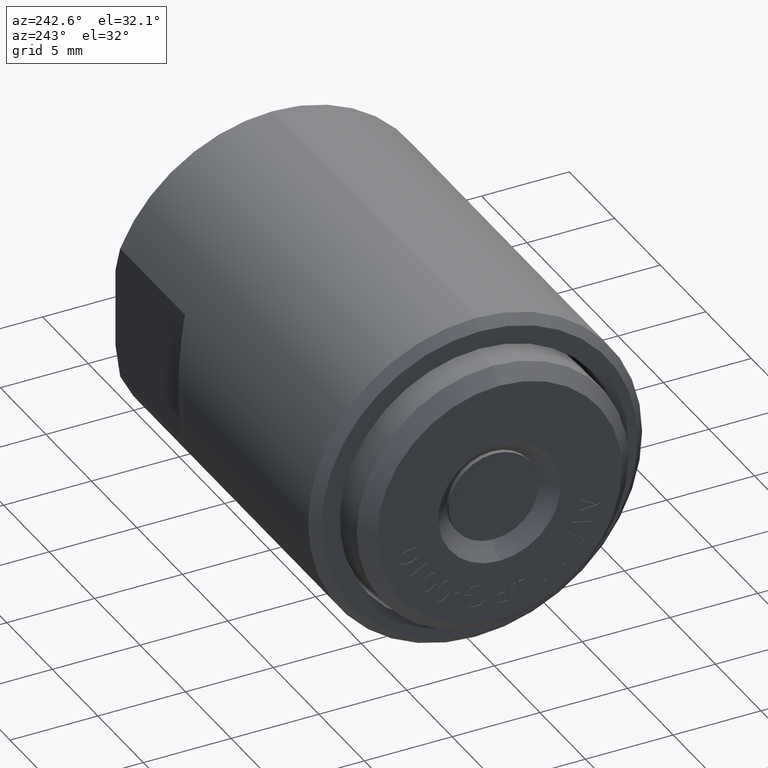
[diagram: clean part render]
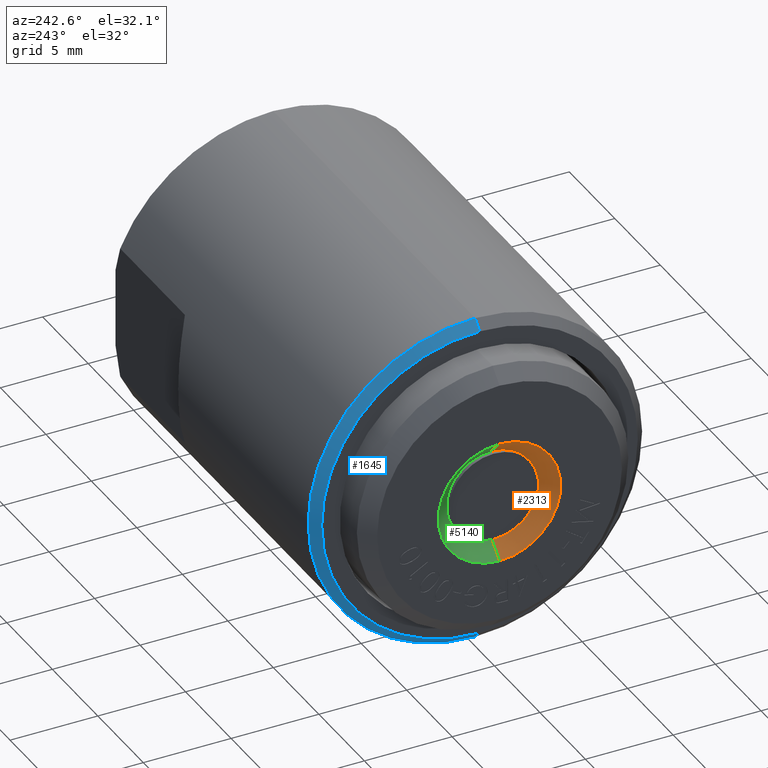
[diagram: same view with three faces highlighted in distinct colors, each labeled with its STEP entity id]
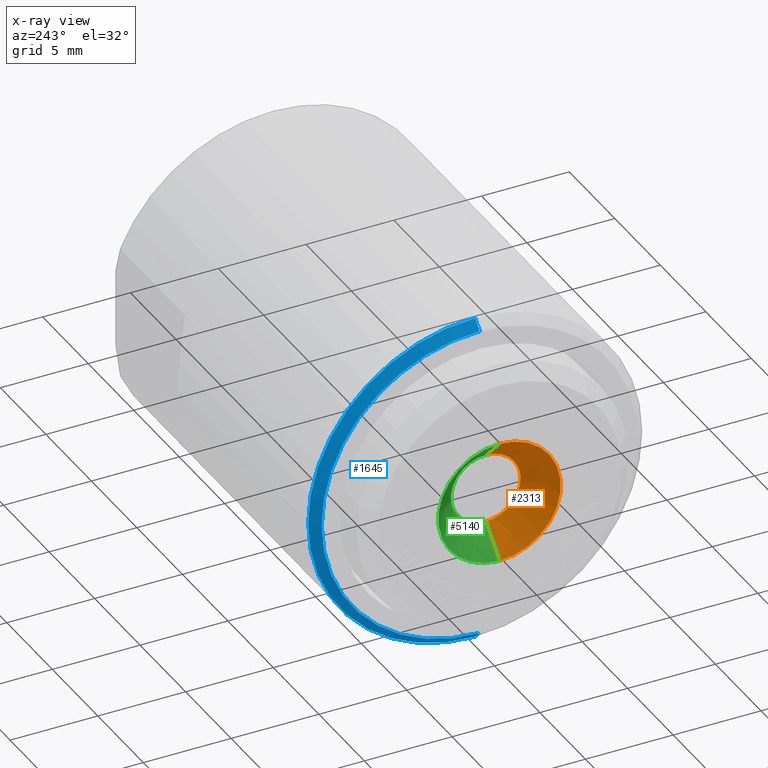
[diagram: x-ray of the same camera — body ghosted, the three highlighted faces saturated]
A machine part, auxiliary view with three faces highlighted in distinct colors.
The next image is the same camera in x-ray (body ghosted, the three faces saturated) — at least one of them is partly hidden behind the body in this view.
Their STEP definitions:

[orange] entity #2313 — the highlighted conical surface has half-angle 45 deg.
#10 = EDGE_CURVE ( 'NONE', #9524, #3121, #3244, .T. ) ;
#35 = CARTESIAN_POINT ( 'NONE',  ( -0.2187499999999999445, 0.0000000000000000000, 0.0000000000000000000 ) ) ;
#276 = CARTESIAN_POINT ( 'NONE',  ( -0.1592500000000001137, 0.0000000000000000000, 0.07799999999999999989 ) ) ;
#1016 = CARTESIAN_POINT ( 'NONE',  ( -0.2187499999999999445, 1.683889348827611553E-17, -0.1375000000000000944 ) ) ;
#1034 = ORIENTED_EDGE ( 'NONE', *, *, #2743, .T. ) ;
#1531 = LINE ( 'NONE', #8016, #9938 ) ;
#2313 = ADVANCED_FACE ( 'NONE', ( #4041 ), #10234, .F. ) ;
#2370 = DIRECTION ( 'NONE',  ( -0.7071067811865459074, 8.659560562354951347E-17, -0.7071067811865490160 ) ) ;
#2743 = EDGE_CURVE ( 'NONE', #3121, #7798, #10802, .T. ) ;
#3121 = VERTEX_POINT ( 'NONE', #1016 ) ;
#3214 = CARTESIAN_POINT ( 'NONE',  ( -0.2187499999999999445, 0.0000000000000000000, 0.0000000000000000000 ) ) ;
#3244 = LINE ( 'NONE', #4879, #4960 ) ;
#3436 = VERTEX_POINT ( 'NONE', #276 ) ;
#3735 = DIRECTION ( 'NONE',  ( -1.000000000000000000, -0.0000000000000000000, -0.0000000000000000000 ) ) ;
#3744 = DIRECTION ( 'NONE',  ( -1.000000000000000000, -0.0000000000000000000, -0.0000000000000000000 ) ) ;
#3980 = DIRECTION ( 'NONE',  ( 0.0000000000000000000, 0.0000000000000000000, 1.000000000000000000 ) ) ;
#4041 = FACE_OUTER_BOUND ( 'NONE', #6935, .T. ) ;
#4214 = CIRCLE ( 'NONE', #10934, 0.07799999999999999989 ) ;
#4553 = CARTESIAN_POINT ( 'NONE',  ( -0.1592500000000001137, 0.0000000000000000000, 0.0000000000000000000 ) ) ;
#4879 = CARTESIAN_POINT ( 'NONE',  ( -0.2187499999999999445, 1.683889348827611553E-17, -0.1375000000000000944 ) ) ;
#4960 = VECTOR ( 'NONE', #2370, 39.37007874015748854 ) ;
#6132 = EDGE_CURVE ( 'NONE', #3436, #7798, #1531, .T. ) ;
#6300 = DIRECTION ( 'NONE',  ( 0.0000000000000000000, 0.0000000000000000000, 1.000000000000000000 ) ) ;
#6853 = DIRECTION ( 'NONE',  ( -0.7071067811865459074, 0.0000000000000000000, 0.7071067811865490160 ) ) ;
#6935 = EDGE_LOOP ( 'NONE', ( #11063, #9178, #1034, #10138 ) ) ;
#7247 = AXIS2_PLACEMENT_3D ( 'NONE', #35, #3735, #6300 ) ;
#7706 = CARTESIAN_POINT ( 'NONE',  ( -0.1592500000000001137, 1.319556926081273548E-17, -0.07799999999999999989 ) ) ;
#7798 = VERTEX_POINT ( 'NONE', #9380 ) ;
#8016 = CARTESIAN_POINT ( 'NONE',  ( -0.2187499999999999445, 0.0000000000000000000, 0.1375000000000000944 ) ) ;
#9122 = DIRECTION ( 'NONE',  ( 0.0000000000000000000, 0.0000000000000000000, 1.000000000000000000 ) ) ;
#9178 = ORIENTED_EDGE ( 'NONE', *, *, #10, .T. ) ;
#9337 = EDGE_CURVE ( 'NONE', #9524, #3436, #4214, .T. ) ;
#9380 = CARTESIAN_POINT ( 'NONE',  ( -0.2187499999999999445, 0.0000000000000000000, 0.1375000000000000944 ) ) ;
#9524 = VERTEX_POINT ( 'NONE', #7706 ) ;
#9938 = VECTOR ( 'NONE', #6853, 39.37007874015748854 ) ;
#10138 = ORIENTED_EDGE ( 'NONE', *, *, #6132, .F. ) ;
#10234 = CONICAL_SURFACE ( 'NONE', #10609, 0.1375000000000000944, 0.7853981633974504994 ) ;
#10242 = DIRECTION ( 'NONE',  ( -1.000000000000000000, -0.0000000000000000000, -0.0000000000000000000 ) ) ;
#10609 = AXIS2_PLACEMENT_3D ( 'NONE', #3214, #10242, #3980 ) ;
#10802 = CIRCLE ( 'NONE', #7247, 0.1375000000000000944 ) ;
#10934 = AXIS2_PLACEMENT_3D ( 'NONE', #4553, #3744, #9122 ) ;
#11063 = ORIENTED_EDGE ( 'NONE', *, *, #9337, .F. ) ;

[blue] entity #1645 — the highlighted conical surface has half-angle 45 deg.
#81 = CARTESIAN_POINT ( 'NONE',  ( -0.1332499999999999796, 0.0000000000000000000, 0.0000000000000000000 ) ) ;
#98 = ORIENTED_EDGE ( 'NONE', *, *, #8060, .T. ) ;
#317 = DIRECTION ( 'NONE',  ( 0.0000000000000000000, 0.0000000000000000000, -1.000000000000000000 ) ) ;
#377 = FACE_OUTER_BOUND ( 'NONE', #7713, .T. ) ;
#382 = CARTESIAN_POINT ( 'NONE',  ( -0.1332499999999999796, 0.0000000000000000000, -0.3544999999999999818 ) ) ;
#572 = EDGE_CURVE ( 'NONE', #5226, #9847, #9971, .T. ) ;
#602 = CARTESIAN_POINT ( 'NONE',  ( -0.1132500000000000173, 0.0000000000000000000, 0.3744999999999999996 ) ) ;
#721 = CARTESIAN_POINT ( 'NONE',  ( -0.1332499999999999796, 0.0000000000000000000, -0.3544999999999999818 ) ) ;
#1429 = DIRECTION ( 'NONE',  ( 0.7071067811865472397, 0.0000000000000000000, -0.7071067811865477948 ) ) ;
#1461 = EDGE_CURVE ( 'NONE', #9602, #7847, #5068, .T. ) ;
#1636 = CONICAL_SURFACE ( 'NONE', #3304, 0.3544999999999999818, 0.7853981633974487231 ) ;
#1645 = ADVANCED_FACE ( 'NONE', ( #377 ), #1636, .T. ) ;
#1770 = CIRCLE ( 'NONE', #10741, 0.3744999999999999996 ) ;
#2071 = DIRECTION ( 'NONE',  ( -1.000000000000000000, -0.0000000000000000000, -0.0000000000000000000 ) ) ;
#2701 = AXIS2_PLACEMENT_3D ( 'NONE', #81, #2071, #8217 ) ;
#3304 = AXIS2_PLACEMENT_3D ( 'NONE', #9105, #4650, #317 ) ;
#4516 = DIRECTION ( 'NONE',  ( 0.0000000000000000000, 0.0000000000000000000, 1.000000000000000000 ) ) ;
#4623 = ORIENTED_EDGE ( 'NONE', *, *, #7709, .F. ) ;
#4650 = DIRECTION ( 'NONE',  ( 1.000000000000000000, 0.0000000000000000000, 0.0000000000000000000 ) ) ;
#5068 = LINE ( 'NONE', #11397, #8716 ) ;
#5226 = VERTEX_POINT ( 'NONE', #382 ) ;
#5404 = DIRECTION ( 'NONE',  ( -1.000000000000000000, -0.0000000000000000000, -0.0000000000000000000 ) ) ;
#5453 = ORIENTED_EDGE ( 'NONE', *, *, #1461, .T. ) ;
#5540 = VECTOR ( 'NONE', #1429, 39.37007874015748143 ) ;
#7240 = CARTESIAN_POINT ( 'NONE',  ( -0.1132500000000000173, 4.586302262806837466E-17, -0.3744999999999999996 ) ) ;
#7428 = DIRECTION ( 'NONE',  ( 0.7071067811865472397, 8.659560562354936556E-17, 0.7071067811865477948 ) ) ;
#7709 = EDGE_CURVE ( 'NONE', #9602, #5226, #9233, .T. ) ;
#7713 = EDGE_LOOP ( 'NONE', ( #4623, #5453, #98, #10670 ) ) ;
#7847 = VERTEX_POINT ( 'NONE', #602 ) ;
#8060 = EDGE_CURVE ( 'NONE', #7847, #9847, #1770, .T. ) ;
#8217 = DIRECTION ( 'NONE',  ( 0.0000000000000000000, 0.0000000000000000000, 1.000000000000000000 ) ) ;
#8716 = VECTOR ( 'NONE', #7428, 39.37007874015748143 ) ;
#9105 = CARTESIAN_POINT ( 'NONE',  ( -0.1332499999999999796, 0.0000000000000000000, 0.0000000000000000000 ) ) ;
#9233 = CIRCLE ( 'NONE', #2701, 0.3544999999999999818 ) ;
#9602 = VERTEX_POINT ( 'NONE', #11285 ) ;
#9847 = VERTEX_POINT ( 'NONE', #7240 ) ;
#9971 = LINE ( 'NONE', #721, #5540 ) ;
#10670 = ORIENTED_EDGE ( 'NONE', *, *, #572, .F. ) ;
#10741 = AXIS2_PLACEMENT_3D ( 'NONE', #10841, #5404, #4516 ) ;
#10841 = CARTESIAN_POINT ( 'NONE',  ( -0.1132500000000000173, 0.0000000000000000000, 0.0000000000000000000 ) ) ;
#11285 = CARTESIAN_POINT ( 'NONE',  ( -0.1332499999999999796, 4.463837582892102417E-17, 0.3544999999999999818 ) ) ;
#11397 = CARTESIAN_POINT ( 'NONE',  ( -0.1332499999999999796, 4.341372902977366751E-17, 0.3544999999999999818 ) ) ;

[green] entity #5140 — the highlighted conical surface has half-angle 45 deg.
#10 = EDGE_CURVE ( 'NONE', #9524, #3121, #3244, .T. ) ;
#117 = AXIS2_PLACEMENT_3D ( 'NONE', #3430, #10570, #2021 ) ;
#155 = DIRECTION ( 'NONE',  ( 0.0000000000000000000, 0.0000000000000000000, 1.000000000000000000 ) ) ;
#276 = CARTESIAN_POINT ( 'NONE',  ( -0.1592500000000001137, 0.0000000000000000000, 0.07799999999999999989 ) ) ;
#414 = CARTESIAN_POINT ( 'NONE',  ( -0.2187499999999999445, 0.0000000000000000000, 0.0000000000000000000 ) ) ;
#1016 = CARTESIAN_POINT ( 'NONE',  ( -0.2187499999999999445, 1.683889348827611553E-17, -0.1375000000000000944 ) ) ;
#1531 = LINE ( 'NONE', #8016, #9938 ) ;
#2021 = DIRECTION ( 'NONE',  ( 0.0000000000000000000, 0.0000000000000000000, 1.000000000000000000 ) ) ;
#2144 = AXIS2_PLACEMENT_3D ( 'NONE', #4655, #4489, #155 ) ;
#2370 = DIRECTION ( 'NONE',  ( -0.7071067811865459074, 8.659560562354951347E-17, -0.7071067811865490160 ) ) ;
#3121 = VERTEX_POINT ( 'NONE', #1016 ) ;
#3244 = LINE ( 'NONE', #4879, #4960 ) ;
#3430 = CARTESIAN_POINT ( 'NONE',  ( -0.1592500000000001137, 0.0000000000000000000, 0.0000000000000000000 ) ) ;
#3436 = VERTEX_POINT ( 'NONE', #276 ) ;
#4115 = ORIENTED_EDGE ( 'NONE', *, *, #6132, .T. ) ;
#4418 = ORIENTED_EDGE ( 'NONE', *, *, #11586, .F. ) ;
#4489 = DIRECTION ( 'NONE',  ( -1.000000000000000000, -0.0000000000000000000, -0.0000000000000000000 ) ) ;
#4567 = AXIS2_PLACEMENT_3D ( 'NONE', #414, #7665, #6679 ) ;
#4655 = CARTESIAN_POINT ( 'NONE',  ( -0.2187499999999999445, 0.0000000000000000000, 0.0000000000000000000 ) ) ;
#4879 = CARTESIAN_POINT ( 'NONE',  ( -0.2187499999999999445, 1.683889348827611553E-17, -0.1375000000000000944 ) ) ;
#4960 = VECTOR ( 'NONE', #2370, 39.37007874015748854 ) ;
#5045 = ORIENTED_EDGE ( 'NONE', *, *, #8188, .T. ) ;
#5140 = ADVANCED_FACE ( 'NONE', ( #8939 ), #7188, .F. ) ;
#5911 = CIRCLE ( 'NONE', #117, 0.07799999999999999989 ) ;
#6132 = EDGE_CURVE ( 'NONE', #3436, #7798, #1531, .T. ) ;
#6679 = DIRECTION ( 'NONE',  ( 0.0000000000000000000, 0.0000000000000000000, 1.000000000000000000 ) ) ;
#6853 = DIRECTION ( 'NONE',  ( -0.7071067811865459074, 0.0000000000000000000, 0.7071067811865490160 ) ) ;
#7188 = CONICAL_SURFACE ( 'NONE', #2144, 0.1375000000000000944, 0.7853981633974504994 ) ;
#7665 = DIRECTION ( 'NONE',  ( -1.000000000000000000, -0.0000000000000000000, -0.0000000000000000000 ) ) ;
#7706 = CARTESIAN_POINT ( 'NONE',  ( -0.1592500000000001137, 1.319556926081273548E-17, -0.07799999999999999989 ) ) ;
#7798 = VERTEX_POINT ( 'NONE', #9380 ) ;
#8016 = CARTESIAN_POINT ( 'NONE',  ( -0.2187499999999999445, 0.0000000000000000000, 0.1375000000000000944 ) ) ;
#8188 = EDGE_CURVE ( 'NONE', #7798, #3121, #9617, .T. ) ;
#8939 = FACE_OUTER_BOUND ( 'NONE', #9538, .T. ) ;
#9380 = CARTESIAN_POINT ( 'NONE',  ( -0.2187499999999999445, 0.0000000000000000000, 0.1375000000000000944 ) ) ;
#9483 = ORIENTED_EDGE ( 'NONE', *, *, #10, .F. ) ;
#9524 = VERTEX_POINT ( 'NONE', #7706 ) ;
#9538 = EDGE_LOOP ( 'NONE', ( #9483, #4418, #4115, #5045 ) ) ;
#9617 = CIRCLE ( 'NONE', #4567, 0.1375000000000000944 ) ;
#9938 = VECTOR ( 'NONE', #6853, 39.37007874015748854 ) ;
#10570 = DIRECTION ( 'NONE',  ( -1.000000000000000000, -0.0000000000000000000, -0.0000000000000000000 ) ) ;
#11586 = EDGE_CURVE ( 'NONE', #3436, #9524, #5911, .T. ) ;